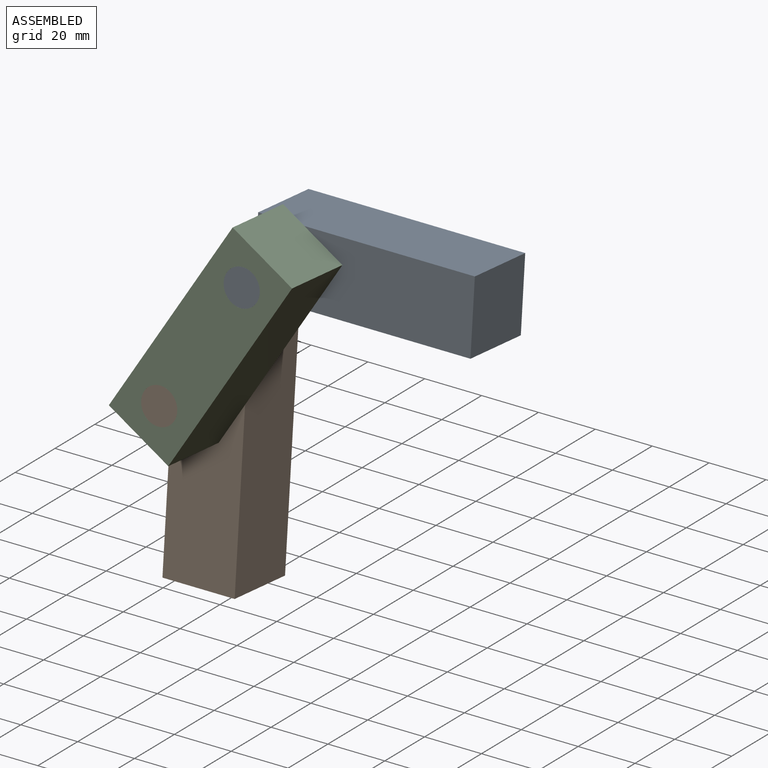
[diagram: assembled view]
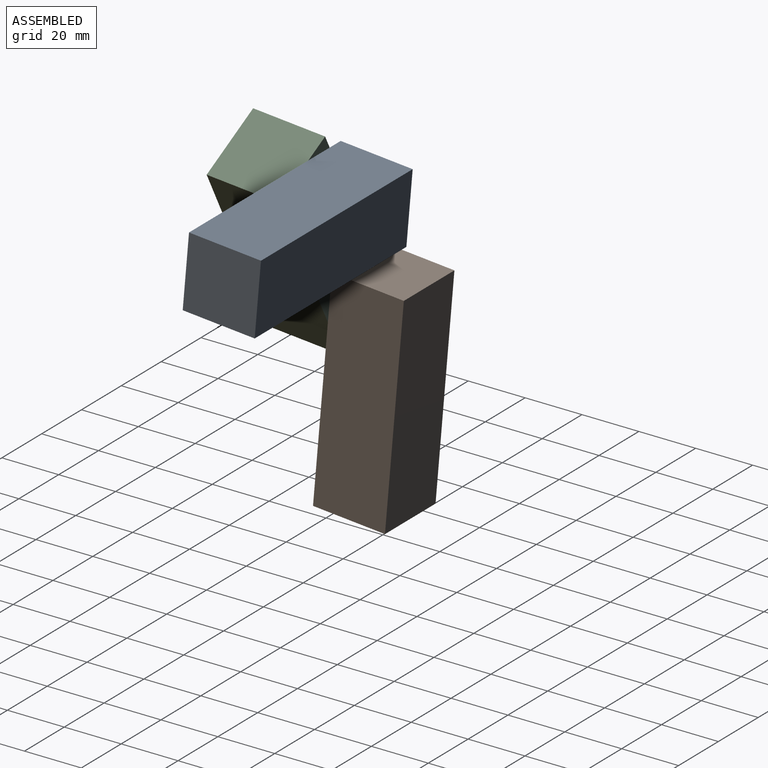
[diagram: assembled view, second angle]
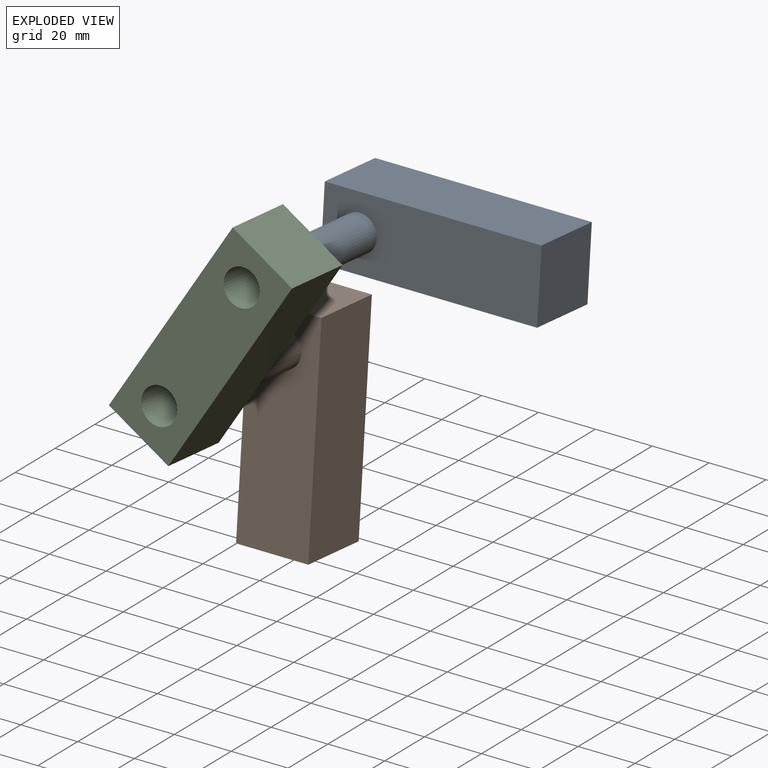
[diagram: exploded view]
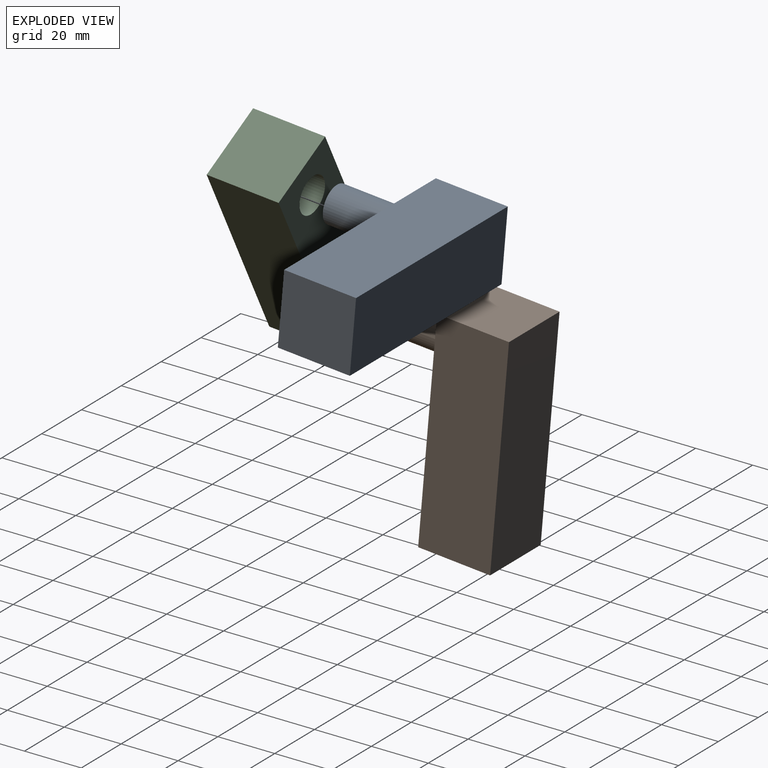
[diagram: exploded view, second angle]
ASSEMBLY  parts=3 mates=2
PART A: 8 faces, bbox 25.4x50.8x76.2 mm
  f0: plane 25.4x25.4mm, normal (0,0,1), area 645.2mm2, adj f1,f3,f4,f5
  f1: plane 76.2x25.4mm, normal (-1,0,0), area 1935.5mm2, adj f0,f2,f4,f5
  f2: plane 25.4x25.4mm, normal (0,0,-1), area 645.2mm2, adj f1,f3,f4,f5
  f3: plane 76.2x25.4mm, normal (1,0,0), area 1935.5mm2, adj f0,f2,f4,f5
  f4: plane 76.2x25.4mm, normal (0,-1,0), area 1808.8mm2, adj f0,f1,f2,f3,f6
  f5: plane 76.2x25.4mm, normal (0,1,0), area 1935.5mm2, adj f0,f1,f2,f3
  f6: cylinder r=6.35mm len=25.4mm, axis (0,1,0), area 1013.4mm2, adj f4,f7
  f7: plane 12.7x12.7mm, normal (0,-1,0), area 126.7mm2, adj f6
PART B: 8 faces, bbox 25.4x50.8x76.2 mm
  f0: plane 25.4x25.4mm, normal (0,0,1), area 645.2mm2, adj f1,f3,f4,f5
  f1: plane 76.2x25.4mm, normal (-1,0,0), area 1935.5mm2, adj f0,f2,f4,f5
  f2: plane 25.4x25.4mm, normal (0,0,-1), area 645.2mm2, adj f1,f3,f4,f5
  f3: plane 76.2x25.4mm, normal (1,0,0), area 1935.5mm2, adj f0,f2,f4,f5
  f4: plane 76.2x25.4mm, normal (0,-1,0), area 1808.8mm2, adj f0,f1,f2,f3,f6
  f5: plane 76.2x25.4mm, normal (0,1,0), area 1935.5mm2, adj f0,f1,f2,f3
  f6: cylinder r=6.35mm len=25.4mm, axis (0,1,0), area 1013.4mm2, adj f4,f7
  f7: plane 12.7x12.7mm, normal (0,-1,0), area 126.7mm2, adj f6
PART C: 8 faces, bbox 76.2x25.4x25.4 mm
  f0: plane 76.2x25.4mm, normal (0,0,1), area 1935.5mm2, adj f1,f5,f6,f7
  f1: plane 25.4x25.4mm, normal (-1,0,0), area 645.2mm2, adj f0,f2,f6,f7
  f2: plane 76.2x25.4mm, normal (0,0,-1), area 1935.5mm2, adj f1,f5,f6,f7
  f3: cylinder r=6.35mm len=25.4mm, axis (0,1,0), area 1013.4mm2, adj f6,f7
  f4: cylinder r=6.35mm len=25.4mm, axis (0,1,0), area 1013.4mm2, adj f6,f7
  f5: plane 25.4x25.4mm, normal (1,0,0), area 645.2mm2, adj f0,f2,f6,f7
  f6: plane 76.2x25.4mm, normal (0,-1,0), area 1682.1mm2, adj f0,f1,f2,f3,f4,f5
  f7: plane 76.2x25.4mm, normal (0,1,0), area 1682.1mm2, adj f0,f1,f2,f3,f4,f5
PLACE A rot(axis=(-0.04,1,-0.04),90.1deg) t=(28.44,-19.41,87.8)mm
PLACE B rot(axis=(-1,0,0),5deg) t=(-17.68,-27.46,-4.28)mm
PLACE C rot(axis=(-0.08,-1,0.04),58.9deg) t=(-5.27,-47.38,59.49)mm
MATE revolute A.f6 <-> C.f4  axis (0,-1,0.09) through (8.69,-70.01,92.23)mm
MATE revolute B.f6 <-> C.f3  axis (0,-1,0.09) through (-17.68,-73.8,48.98)mm
